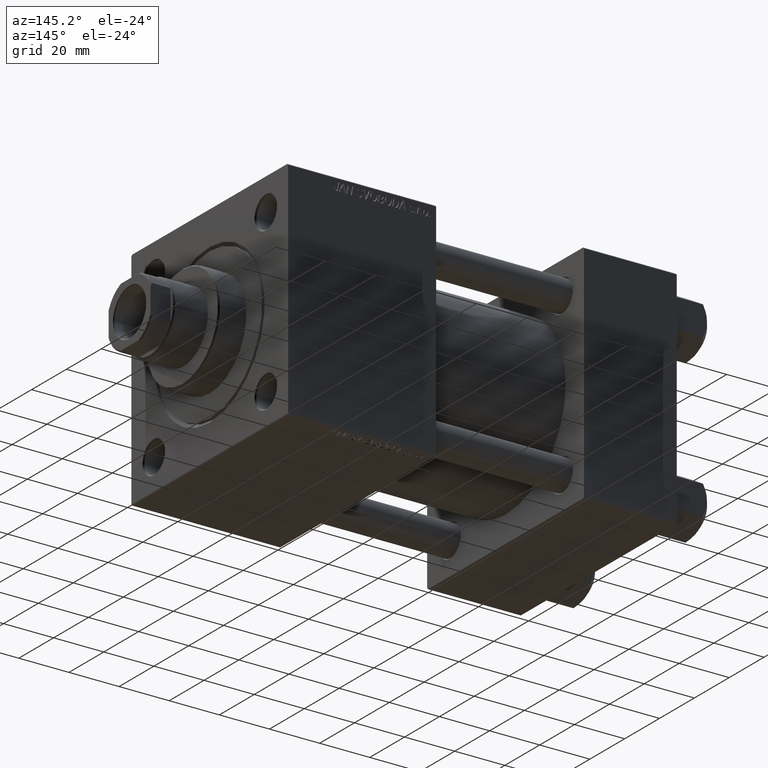
[diagram: clean part render]
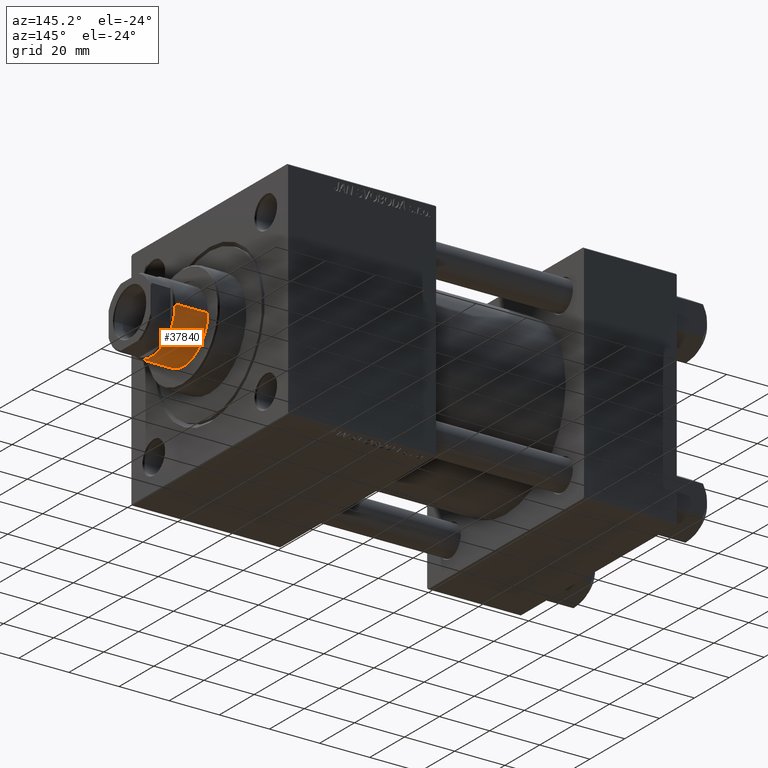
[diagram: same view with one face highlighted and labeled with its STEP entity id]
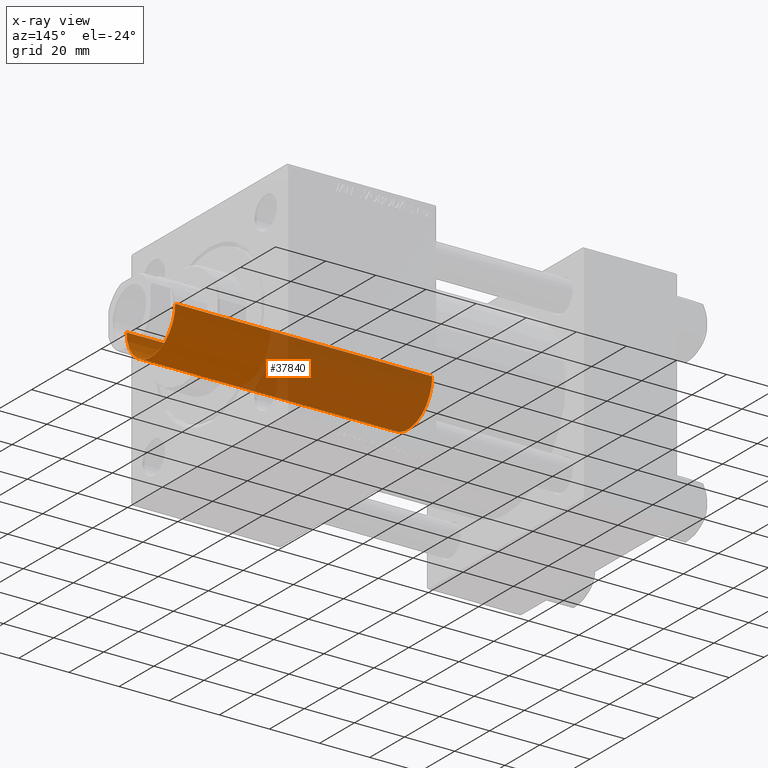
[diagram: x-ray of the same camera — body ghosted, the highlighted face saturated]
A machine part, auxiliary view. The second image highlights one B-rep face of the part: STEP entity #37840.
The next image is the same camera in x-ray: the body ghosted, the highlighted face saturated — about 61% of this face is hidden behind the body in this view.
In plain terms, the highlighted cylindrical surface (partial cylindrical patch) has radius 14 mm, axis along (-1, 0, 0).
Its self-contained STEP definition (entity closure, byte-faithful):
#993 = LINE ( 'NONE', #35264, #21825 ) ;
#1067 = ORIENTED_EDGE ( 'NONE', *, *, #4920, .T. ) ;
#3710 = EDGE_LOOP ( 'NONE', ( #27723, #1067, #39359, #31630 ) ) ;
#4318 = CARTESIAN_POINT ( 'NONE',  ( 14.00000000000000178, 1.714505518806294835E-15, 141.5000000000000000 ) ) ;
#4920 = EDGE_CURVE ( 'NONE', #22558, #29021, #10025, .T. ) ;
#8797 = AXIS2_PLACEMENT_3D ( 'NONE', #48261, #9914, #48017 ) ;
#9914 = DIRECTION ( 'NONE',  ( 0.000000000000000000, 0.000000000000000000, -1.000000000000000000 ) ) ;
#9949 = VERTEX_POINT ( 'NONE', #20789 ) ;
#10025 = LINE ( 'NONE', #47642, #38290 ) ;
#12841 = CARTESIAN_POINT ( 'NONE',  ( 0.000000000000000000, 0.000000000000000000, 142.0000000000000000 ) ) ;
#15741 = CARTESIAN_POINT ( 'NONE',  ( 14.00000000000000178, 1.714505518806294835E-15, 39.00000000000000000 ) ) ;
#17383 = FACE_OUTER_BOUND ( 'NONE', #3710, .T. ) ;
#20531 = DIRECTION ( 'NONE',  ( -0.000000000000000000, -0.000000000000000000, -1.000000000000000000 ) ) ;
#20789 = CARTESIAN_POINT ( 'NONE',  ( -14.00000000000000178, 0.000000000000000000, 39.00000000000000000 ) ) ;
#21442 = DIRECTION ( 'NONE',  ( -0.000000000000000000, -0.000000000000000000, -1.000000000000000000 ) ) ;
#21825 = VECTOR ( 'NONE', #20531, 1000.000000000000000 ) ;
#22558 = VERTEX_POINT ( 'NONE', #4318 ) ;
#24672 = EDGE_CURVE ( 'NONE', #29021, #9949, #35553, .T. ) ;
#25031 = CARTESIAN_POINT ( 'NONE',  ( -14.00000000000000178, 0.000000000000000000, 141.5000000000000000 ) ) ;
#25831 = CIRCLE ( 'NONE', #8797, 14.00000000000000178 ) ;
#26072 = DIRECTION ( 'NONE',  ( 1.000000000000000000, 0.000000000000000000, 0.000000000000000000 ) ) ;
#26451 = AXIS2_PLACEMENT_3D ( 'NONE', #12841, #21442, #47876 ) ;
#27723 = ORIENTED_EDGE ( 'NONE', *, *, #28281, .T. ) ;
#28281 = EDGE_CURVE ( 'NONE', #46299, #22558, #25831, .T. ) ;
#29021 = VERTEX_POINT ( 'NONE', #15741 ) ;
#31630 = ORIENTED_EDGE ( 'NONE', *, *, #49977, .F. ) ;
#34429 = CARTESIAN_POINT ( 'NONE',  ( 0.000000000000000000, 0.000000000000000000, 39.00000000000000000 ) ) ;
#34682 = DIRECTION ( 'NONE',  ( 0.000000000000000000, 0.000000000000000000, 1.000000000000000000 ) ) ;
#35264 = CARTESIAN_POINT ( 'NONE',  ( -14.00000000000000178, 0.000000000000000000, 142.0000000000000000 ) ) ;
#35553 = CIRCLE ( 'NONE', #50125, 14.00000000000000178 ) ;
#36944 = DIRECTION ( 'NONE',  ( -0.000000000000000000, -0.000000000000000000, -1.000000000000000000 ) ) ;
#37840 = ADVANCED_FACE ( 'NONE', ( #17383 ), #47627, .T. ) ;
#38290 = VECTOR ( 'NONE', #36944, 1000.000000000000000 ) ;
#39359 = ORIENTED_EDGE ( 'NONE', *, *, #24672, .T. ) ;
#46299 = VERTEX_POINT ( 'NONE', #25031 ) ;
#47627 = CYLINDRICAL_SURFACE ( 'NONE', #26451, 14.00000000000000178 ) ;
#47642 = CARTESIAN_POINT ( 'NONE',  ( 14.00000000000000178, 1.714505518806294835E-15, 142.0000000000000000 ) ) ;
#47876 = DIRECTION ( 'NONE',  ( -1.000000000000000000, 0.000000000000000000, 0.000000000000000000 ) ) ;
#48017 = DIRECTION ( 'NONE',  ( 1.000000000000000000, 0.000000000000000000, 0.000000000000000000 ) ) ;
#48261 = CARTESIAN_POINT ( 'NONE',  ( 0.000000000000000000, 0.000000000000000000, 141.5000000000000000 ) ) ;
#49977 = EDGE_CURVE ( 'NONE', #46299, #9949, #993, .T. ) ;
#50125 = AXIS2_PLACEMENT_3D ( 'NONE', #34429, #34682, #26072 ) ;